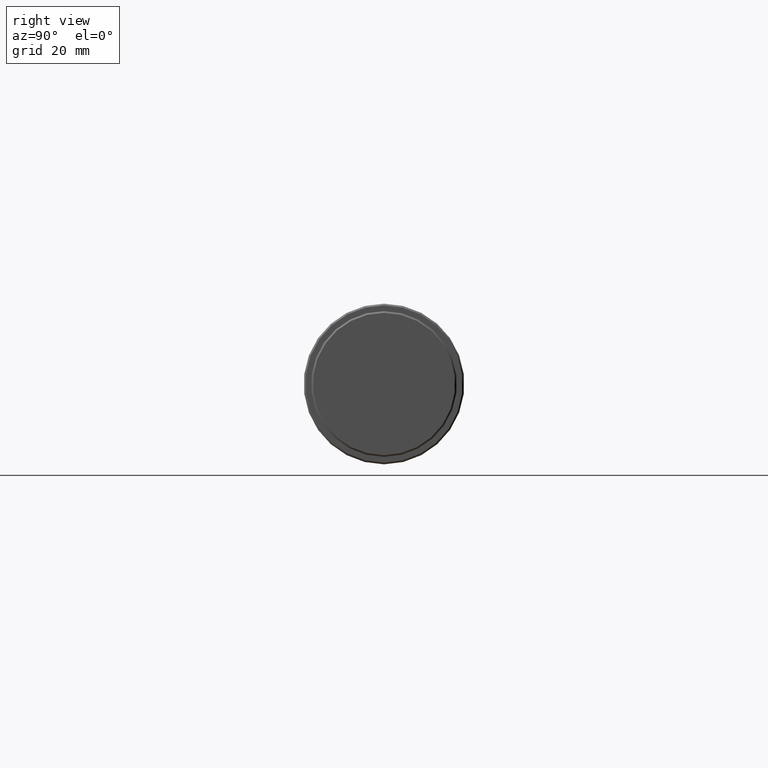
[diagram: clean part render]
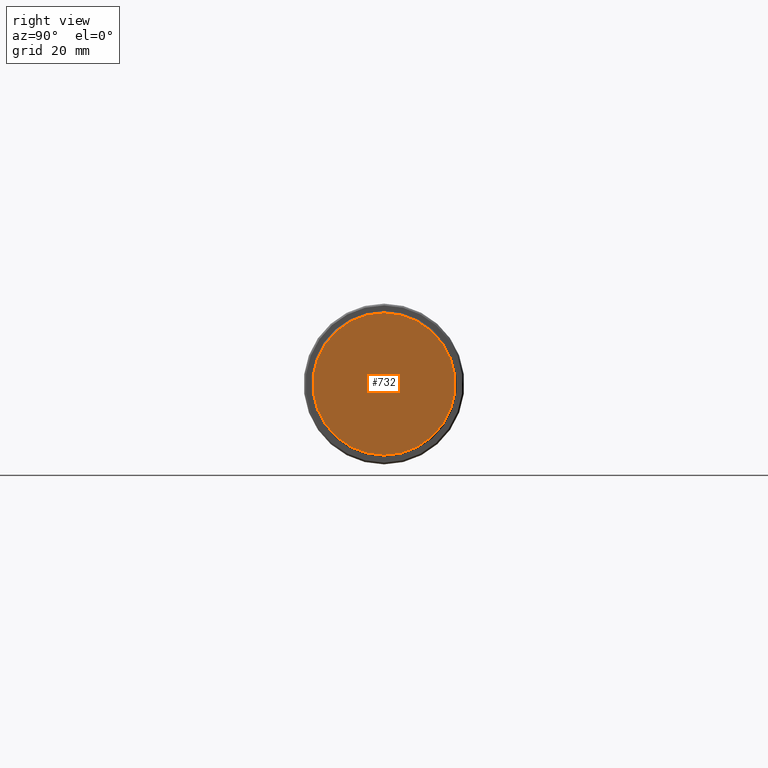
[diagram: same view with one face highlighted and labeled with its STEP entity id]
A machine part, right view. The second image highlights one B-rep face of the part: STEP entity #732.
In plain terms, the highlighted planar face has unit normal (-1, 0, -0).
Its self-contained STEP definition (entity closure, byte-faithful):
#39 = CIRCLE ( 'NONE', #723, 12.40000000000000400 ) ;
#45 = DIRECTION ( 'NONE',  ( -1.000000000000000000, -0.0000000000000000000, -0.0000000000000000000 ) ) ;
#51 = CARTESIAN_POINT ( 'NONE',  ( 121.2000000000000000, 0.0000000000000000000, 0.0000000000000000000 ) ) ;
#65 = VERTEX_POINT ( 'NONE', #361 ) ;
#121 = DIRECTION ( 'NONE',  ( 0.0000000000000000000, 0.0000000000000000000, 1.000000000000000000 ) ) ;
#141 = DIRECTION ( 'NONE',  ( -1.000000000000000000, -0.0000000000000000000, -0.0000000000000000000 ) ) ;
#191 = CIRCLE ( 'NONE', #744, 12.40000000000000400 ) ;
#270 = DIRECTION ( 'NONE',  ( 0.0000000000000000000, 0.0000000000000000000, 1.000000000000000000 ) ) ;
#304 = CARTESIAN_POINT ( 'NONE',  ( 121.2000000000000000, 12.40000000000000400, 0.0000000000000000000 ) ) ;
#353 = PLANE ( 'NONE',  #405 ) ;
#361 = CARTESIAN_POINT ( 'NONE',  ( 121.2000000000000000, 1.536931732929928600E-015, -12.40000000000000400 ) ) ;
#365 = EDGE_CURVE ( 'NONE', #65, #596, #39, .T. ) ;
#401 = CARTESIAN_POINT ( 'NONE',  ( 121.2000000000000000, 0.0000000000000000000, 0.0000000000000000000 ) ) ;
#405 = AXIS2_PLACEMENT_3D ( 'NONE', #304, #741, #498 ) ;
#481 = CARTESIAN_POINT ( 'NONE',  ( 121.2000000000000000, 0.0000000000000000000, 12.40000000000000400 ) ) ;
#491 = ORIENTED_EDGE ( 'NONE', *, *, #685, .F. ) ;
#498 = DIRECTION ( 'NONE',  ( -0.0000000000000000000, 0.0000000000000000000, 1.000000000000000000 ) ) ;
#580 = ORIENTED_EDGE ( 'NONE', *, *, #365, .F. ) ;
#596 = VERTEX_POINT ( 'NONE', #481 ) ;
#680 = FACE_OUTER_BOUND ( 'NONE', #704, .T. ) ;
#685 = EDGE_CURVE ( 'NONE', #596, #65, #191, .T. ) ;
#704 = EDGE_LOOP ( 'NONE', ( #491, #580 ) ) ;
#723 = AXIS2_PLACEMENT_3D ( 'NONE', #401, #141, #270 ) ;
#732 = ADVANCED_FACE ( 'NONE', ( #680 ), #353, .F. ) ;
#741 = DIRECTION ( 'NONE',  ( -1.000000000000000000, 0.0000000000000000000, -0.0000000000000000000 ) ) ;
#744 = AXIS2_PLACEMENT_3D ( 'NONE', #51, #45, #121 ) ;